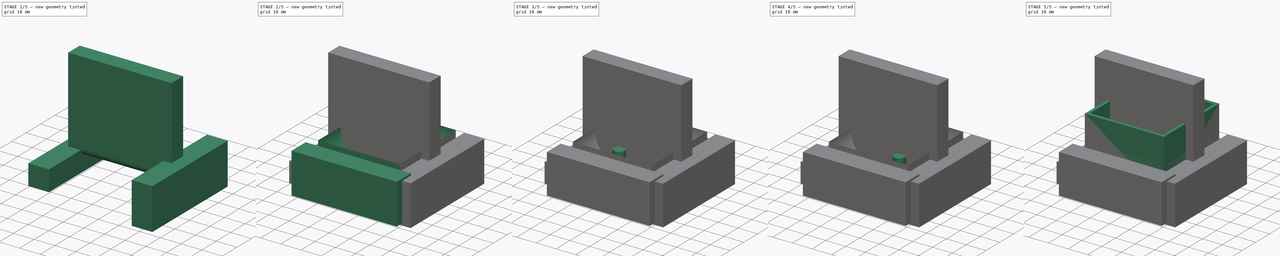
[diagram: build sequence overview — one tinted view per stage of 5, left to right]
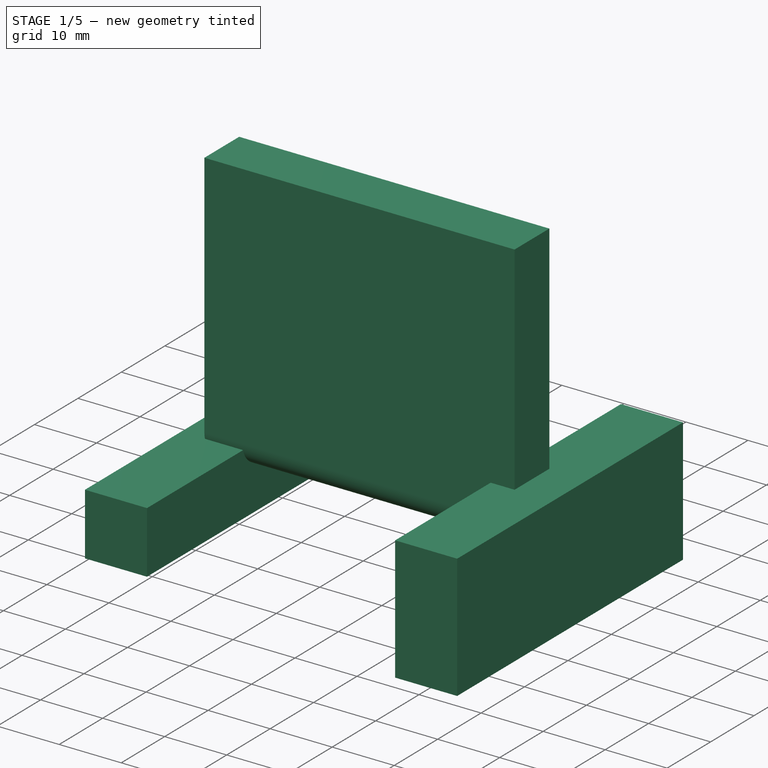
[diagram: stage 1 of 5 — iso view after this stage's code; geometry added in this stage tinted green]
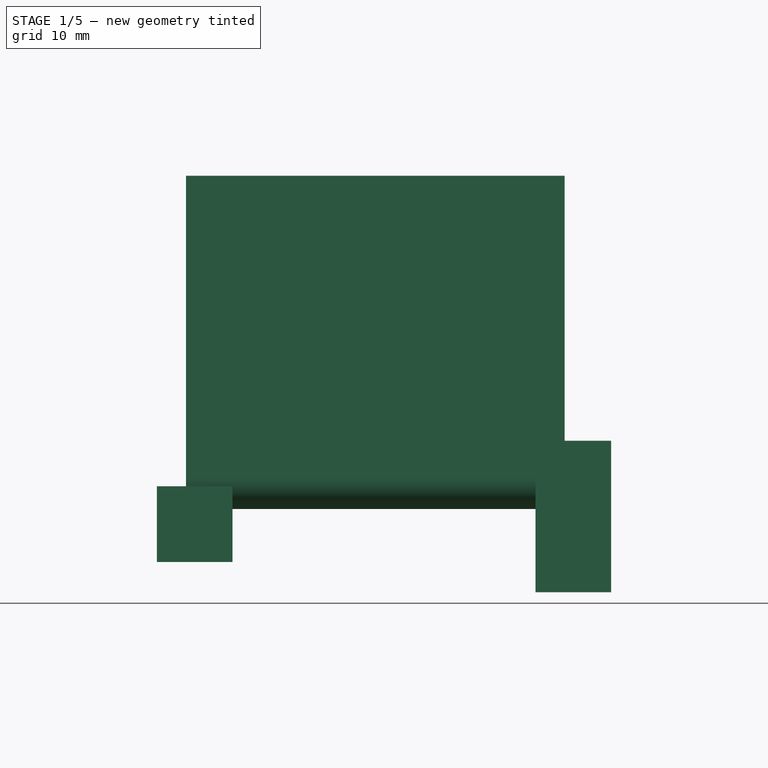
[diagram: stage 1 of 5 — front view after this stage's code; geometry added in this stage tinted green]
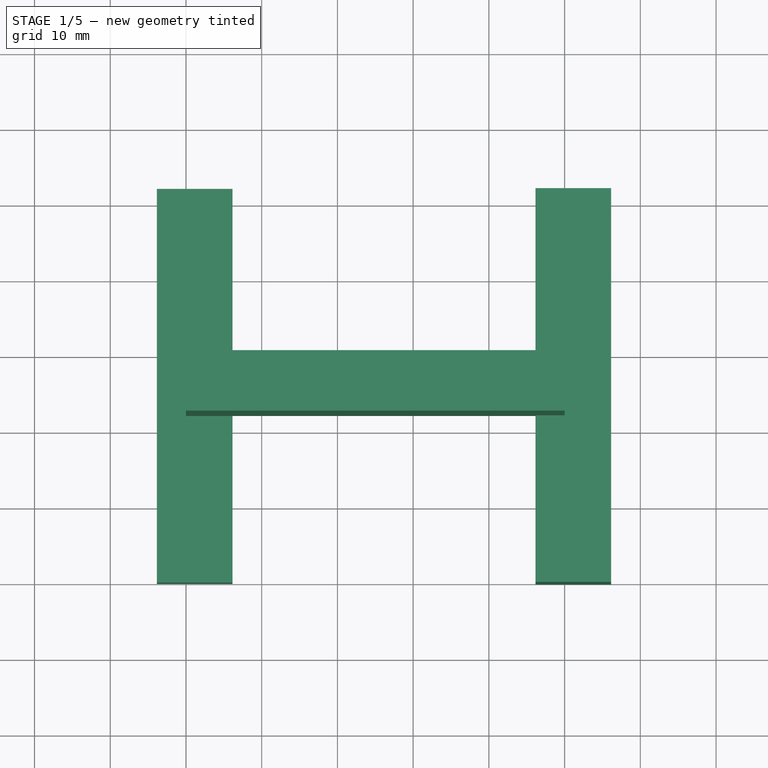
[diagram: stage 1 of 5 — top view after this stage's code; geometry added in this stage tinted green]
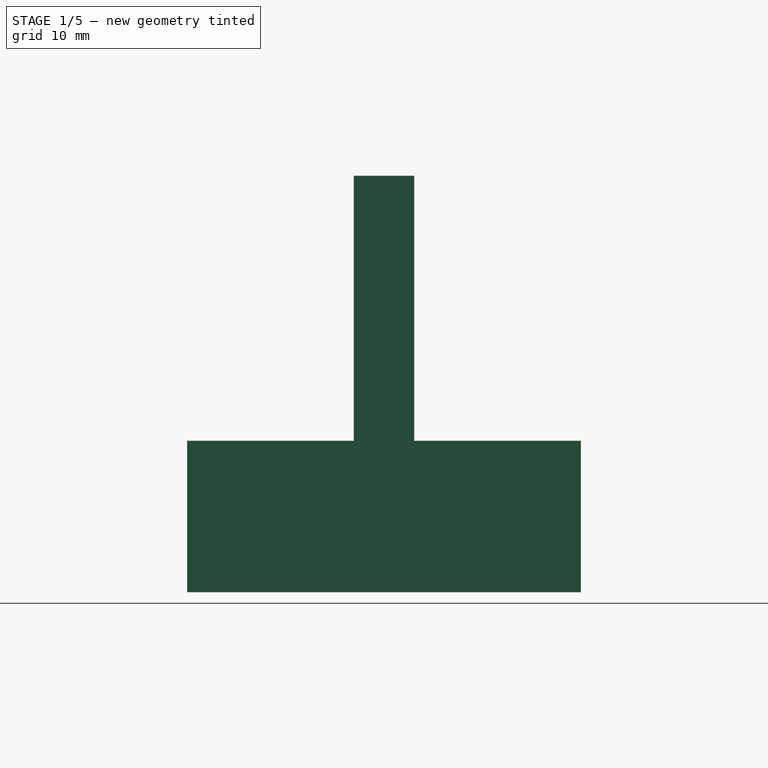
[diagram: stage 1 of 5 — right view after this stage's code; geometry added in this stage tinted green]
FCSTD DOCUMENT  (FreeCAD 0.19R0.19.2)
Label: motorMount031
License: All rights reserved
LicenseURL: http://en.wikipedia.org/wiki/All_rights_reserved
objects: Part::MultiFuse×6, Sketcher::SketchObject×5, Part::Cylinder×5, Part::Box×5, Part::Extrusion×4, Part::Cone×4, Part::Fuse×2, Part::Fillet×1, Part::Cut×1
note: 33 computed .brp shape members not serialized (recipe doc carries the construction recipe); baked Part::Feature solids carry a one-line shape summary decoded from their .brp

FEATURE [Part::Cylinder] Cylinder004
  Angle = 360
  AttacherType = Attacher::AttachEngine3D
  Height = 50
  Placement = pos=(0,0,0) rot=(0,1,0;1.5708rad)
  Radius = 4
FEATURE [Part::Box] Box002  label="Cube001"
  AttacherType = Attacher::AttachEngine3D
  Height = 40
  Length = 50
  Placement = pos=(0,-4,0) rot=(0,0,1;0rad)
  Width = 8
FEATURE [Part::MultiFuse] Fusion014  label="removeFromMain"
  Placement = pos=(-20,6,10) rot=(0,0,1;0rad)
  Shapes = -> [Cylinder004,Box002]
FEATURE [Part::Box] Box003  label="Cube002"
  AttacherType = Attacher::AttachEngine3D
  Height = 10
  Length = 52
  Placement = pos=(-20,26.15,0) rot=(0,0,1;0rad)
  Width = 10
FEATURE [Part::Box] Box004
  AttacherType = Attacher::AttachEngine3D
  Height = 20
  Length = 52
  Placement = pos=(-20,-23.85,-4) rot=(0,0,1;0rad)
  Width = 10
FEATURE [Part::MultiFuse] Fusion015  label="removeFrommain001"
  Placement = pos=(12.3,0,-1) rot=(0,0,1;1.5708rad)
  Shapes = -> [Box003,Box004]
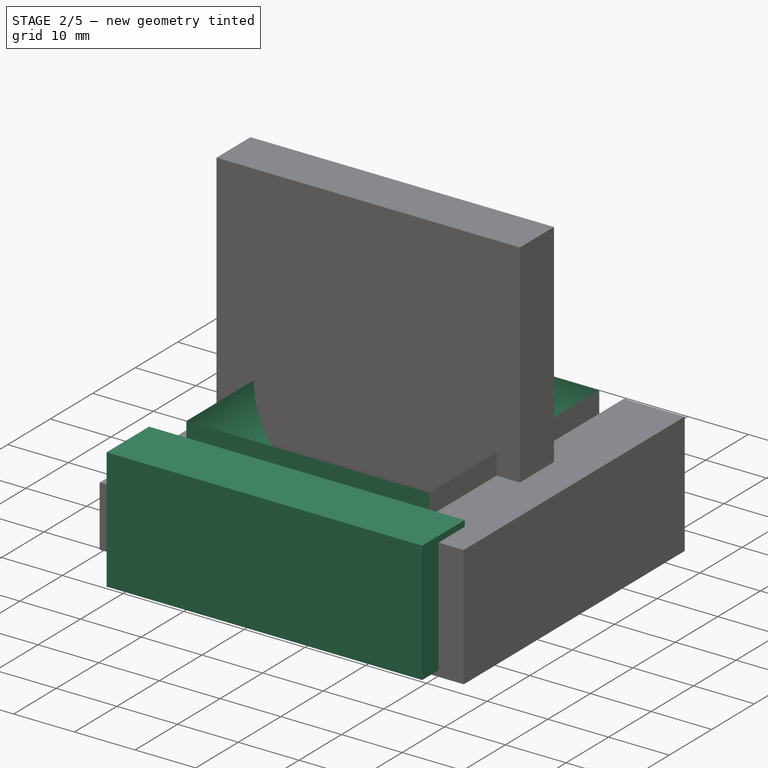
[diagram: stage 2 of 5 — iso view after this stage's code; geometry added in this stage tinted green]
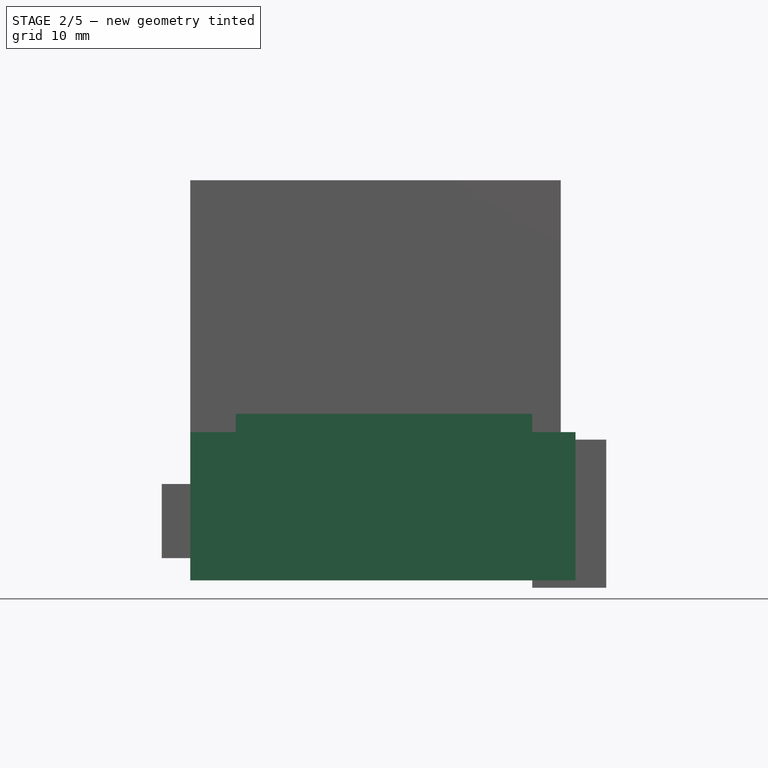
[diagram: stage 2 of 5 — front view after this stage's code; geometry added in this stage tinted green]
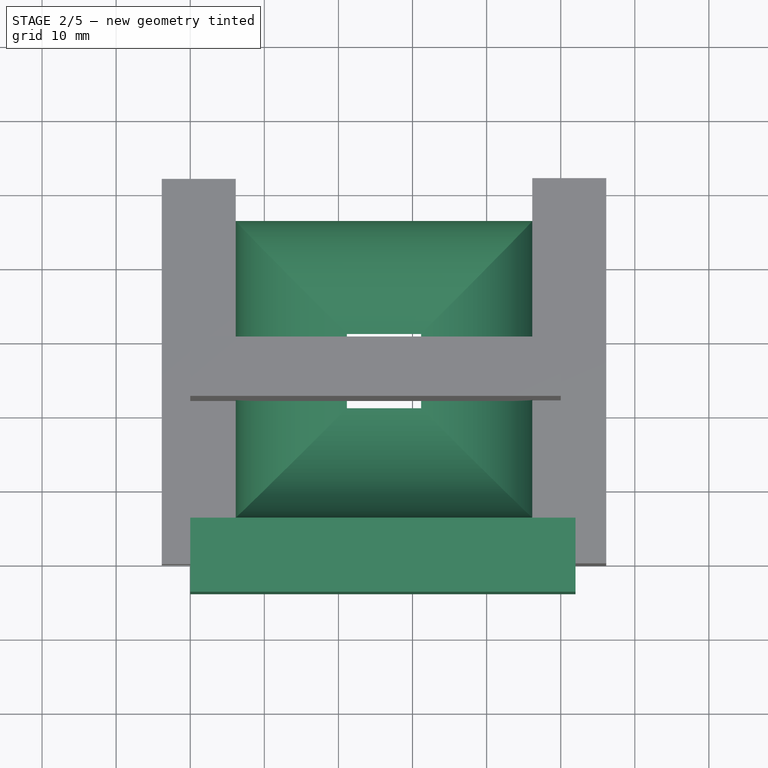
[diagram: stage 2 of 5 — top view after this stage's code; geometry added in this stage tinted green]
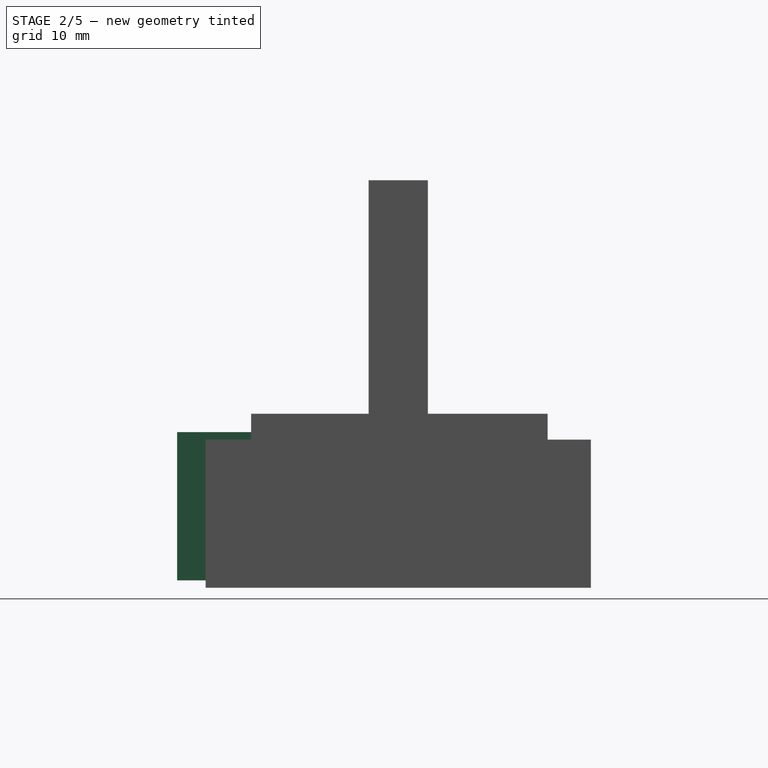
[diagram: stage 2 of 5 — right view after this stage's code; geometry added in this stage tinted green]
FEATURE [Sketcher::SketchObject] Sketch001
  FullyConstrained = true
  sketch-geometry (8):
    g0: LineSegment StartX=1.15 StartY=11.15 StartZ=0 EndX=11.15 EndY=11.15 EndZ=0
    g1: LineSegment StartX=11.15 StartY=1.15 StartZ=0 EndX=11.15 EndY=11.15 EndZ=0
    g2: LineSegment StartX=11.15 StartY=1.15 StartZ=0 EndX=1.15 EndY=1.15 EndZ=0
    g3: LineSegment StartX=1.15 StartY=11.15 StartZ=0 EndX=1.15 EndY=1.15 EndZ=0
    g4: LineSegment StartX=-13.85 StartY=-13.85 StartZ=0 EndX=-13.85 EndY=26.15 EndZ=0
    g5: LineSegment StartX=26.15 StartY=26.15 StartZ=0 EndX=-13.85 EndY=26.15 EndZ=0
    g6: LineSegment StartX=26.15 StartY=26.15 StartZ=0 EndX=26.15 EndY=-13.85 EndZ=0
    g7: LineSegment StartX=-13.85 StartY=-13.85 StartZ=0 EndX=26.15 EndY=-13.85 EndZ=0
  constraints (20):
    c: Horizontal(g0)
    c: Vertical(g1)
    c: Coincident(g0,g1)
    c: Horizontal(g2)
    c: Vertical(g3)
    c: Coincident(g3,g2)
    c: Block(g0)
    c: Block(g2)
    c: Block(g1)
    c: Block(g3)
    c: Vertical(g4)
    c: Horizontal(g5)
    c: Coincident(g5,g4)
    c: Block(g5)
    c: Block(g4)
    c: Coincident(g6,g5)
    c: Vertical(g6)
    c: Coincident(g7,g4)
    c: Horizontal(g7)
    c: Coincident(g7,g6)
FEATURE [Part::Extrusion] Extrude001
  Base = -> Sketch001
  Dir = (0,0,1)
  DirMode = 2
  FaceMakerClass = Part::FaceMakerBullseye
  LengthFwd = 30
  LengthRev = 0
  Placement = pos=(0,0,13.4) rot=(0,0,1;0rad)
  Solid = true
  Symmetric = false
FEATURE [Part::Box] Box001
  AttacherType = Attacher::AttachEngine3D
  Height = 20
  Length = 52
  Placement = pos=(-20,-23.85,-4) rot=(0,0,1;0rad)
  Width = 10
FEATURE [Sketcher::SketchObject] Sketch004
  FullyConstrained = true
  sketch-geometry (8):
    g0: LineSegment StartX=1.15 StartY=11.15 StartZ=0 EndX=11.15 EndY=11.15 EndZ=0
    g1: LineSegment StartX=11.15 StartY=1.15 StartZ=0 EndX=11.15 EndY=11.15 EndZ=0
    g2: LineSegment StartX=11.15 StartY=1.15 StartZ=0 EndX=1.15 EndY=1.15 EndZ=0
    g3: LineSegment StartX=1.15 StartY=11.15 StartZ=0 EndX=1.15 EndY=1.15 EndZ=0
    g4: LineSegment StartX=-13.85 StartY=-13.85 StartZ=0 EndX=-13.85 EndY=26.15 EndZ=0
    g5: LineSegment StartX=26.15 StartY=26.15 StartZ=0 EndX=-13.85 EndY=26.15 EndZ=0
    g6: LineSegment StartX=26.15 StartY=26.15 StartZ=0 EndX=26.15 EndY=-13.85 EndZ=0
    g7: LineSegment StartX=-13.85 StartY=-13.85 StartZ=0 EndX=26.15 EndY=-13.85 EndZ=0
  constraints (20):
    c: Horizontal(g0)
    c: Vertical(g1)
    c: Coincident(g0,g1)
    c: Horizontal(g2)
    c: Vertical(g3)
    c: Coincident(g3,g2)
    c: Block(g0)
    c: Block(g2)
    c: Block(g1)
    c: Block(g3)
    c: Vertical(g4)
    c: Horizontal(g5)
    c: Coincident(g5,g4)
    c: Block(g5)
    c: Block(g4)
    c: Coincident(g6,g5)
    c: Vertical(g6)
    c: Coincident(g7,g4)
    c: Horizontal(g7)
    c: Coincident(g7,g6)
FEATURE [Part::Extrusion] Extrude004
  Base = -> Sketch004
  Dir = (0,0,1)
  DirMode = 2
  FaceMakerClass = Part::FaceMakerBullseye
  LengthFwd = 30
  LengthRev = 0
  Placement = pos=(0,0,13.4) rot=(0,0,1;0rad)
  Solid = true
  Symmetric = false
FEATURE [Part::Fillet] Fillet
  Base = -> Extrude004
  Edges = 4 edges r=14.99: [Edge3,Edge6,Edge9,Edge11]
FEATURE [Part::Cut] Cut
  Base = -> Extrude001
  Placement = pos=(0,0,-9.9) rot=(0,0,1;0rad)
  Tool = -> Fillet
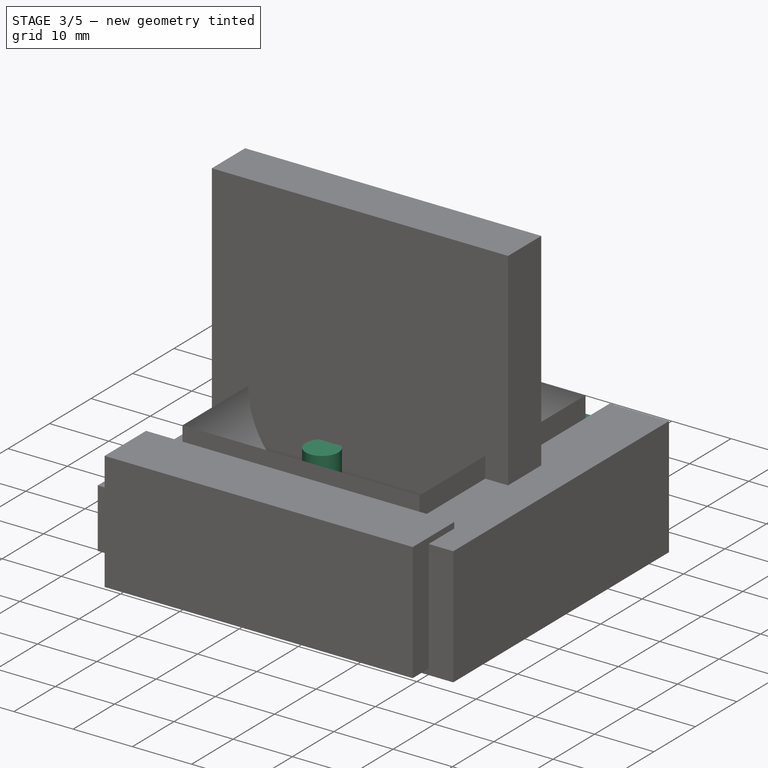
[diagram: stage 3 of 5 — iso view after this stage's code; geometry added in this stage tinted green]
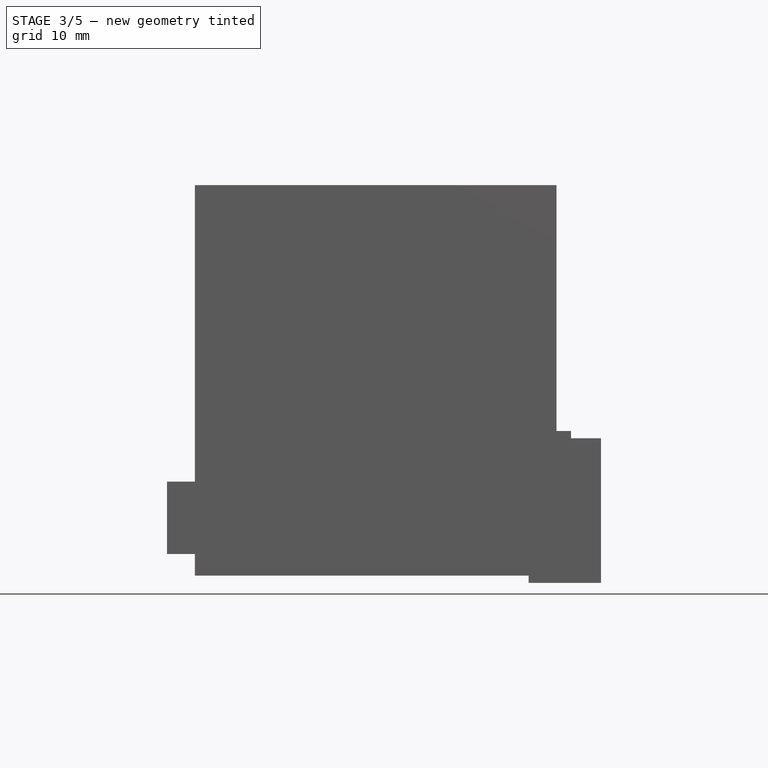
[diagram: stage 3 of 5 — front view after this stage's code; geometry added in this stage tinted green]
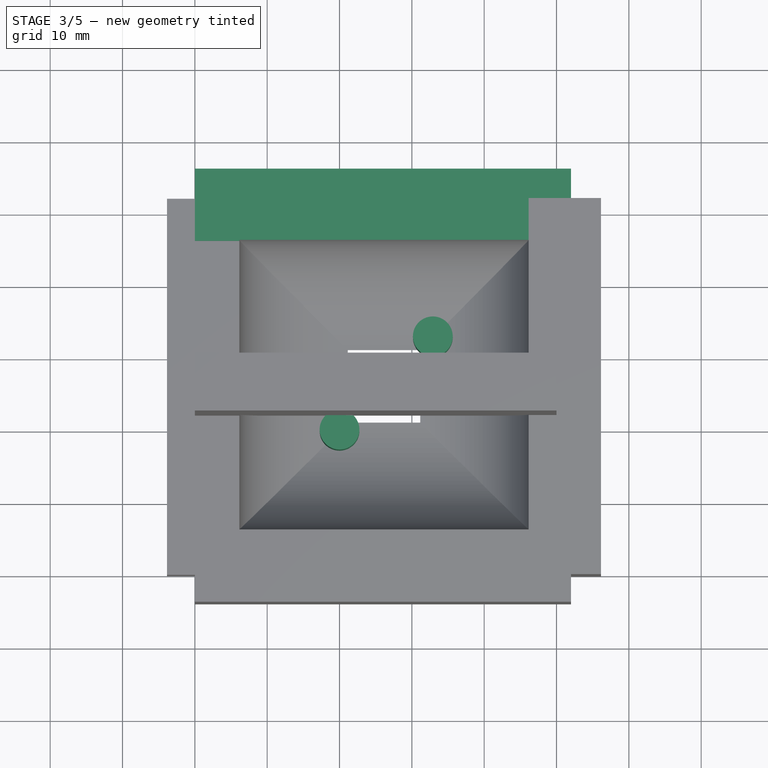
[diagram: stage 3 of 5 — top view after this stage's code; geometry added in this stage tinted green]
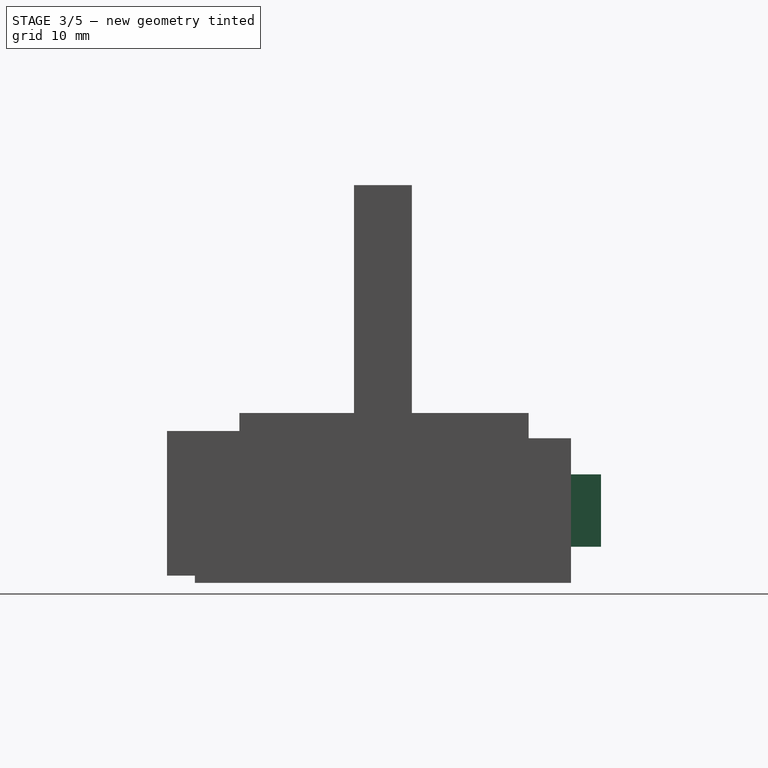
[diagram: stage 3 of 5 — right view after this stage's code; geometry added in this stage tinted green]
FEATURE [Part::Cone] Cone002
  Angle = 360
  AttacherType = Attacher::AttachEngine3D
  Height = 2
  Placement = pos=(0,0,1.5) rot=(0,0,1;0rad)
  Radius1 = 1.3
  Radius2 = 2.75
FEATURE [Part::Cylinder] Cylinder002
  Angle = 360
  AttacherType = Attacher::AttachEngine3D
  Height = 10
  Placement = pos=(0,0,3.5) rot=(0,0,1;0rad)
  Radius = 2.75
FEATURE [Part::Cylinder] Cylinder003
  Angle = 360
  AttacherType = Attacher::AttachEngine3D
  Height = 10
  Placement = pos=(0,0,3.5) rot=(0,0,1;0rad)
  Radius = 2.75
FEATURE [Part::Box] Box  label="Cube"
  AttacherType = Attacher::AttachEngine3D
  Height = 10
  Length = 52
  Placement = pos=(-20,26.15,0) rot=(0,0,1;0rad)
  Width = 10
FEATURE [Part::MultiFuse] Fusion009  label="removeFromMainToCreateScrewChamfer002"
  Placement = pos=(12.9,12.9,0) rot=(0,0,1;0rad)
  Shapes = -> [Cylinder002,Cone002]
FEATURE [Part::MultiFuse] Fusion013  label="removeFrommain"
  Shapes = -> [Box,Box001]
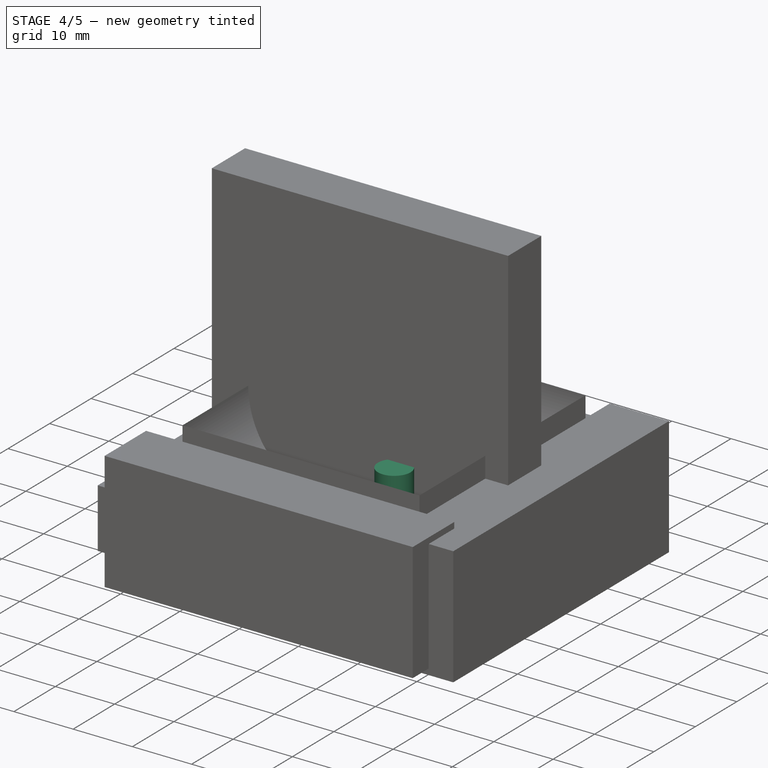
[diagram: stage 4 of 5 — iso view after this stage's code; geometry added in this stage tinted green]
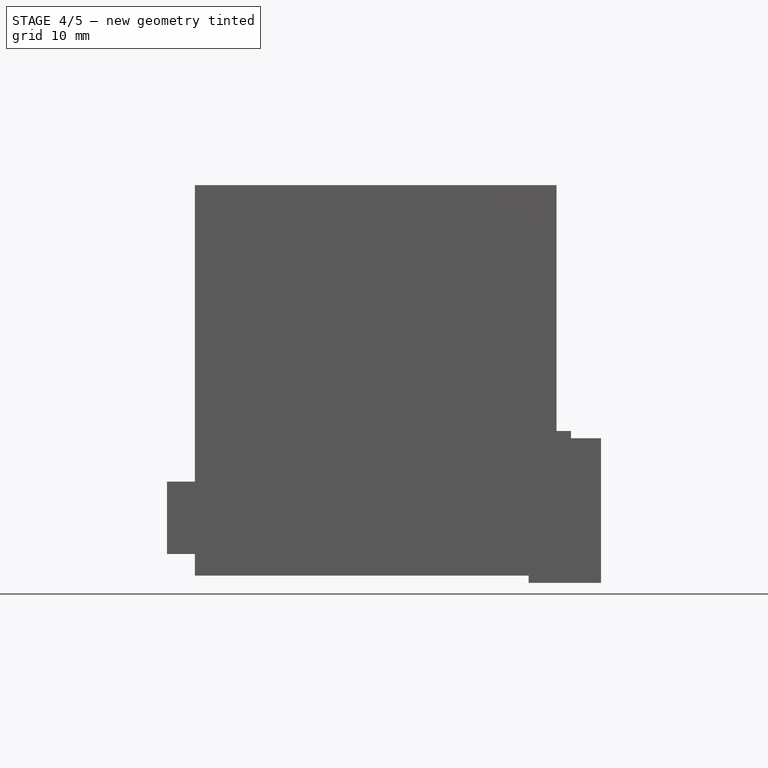
[diagram: stage 4 of 5 — front view after this stage's code; geometry added in this stage tinted green]
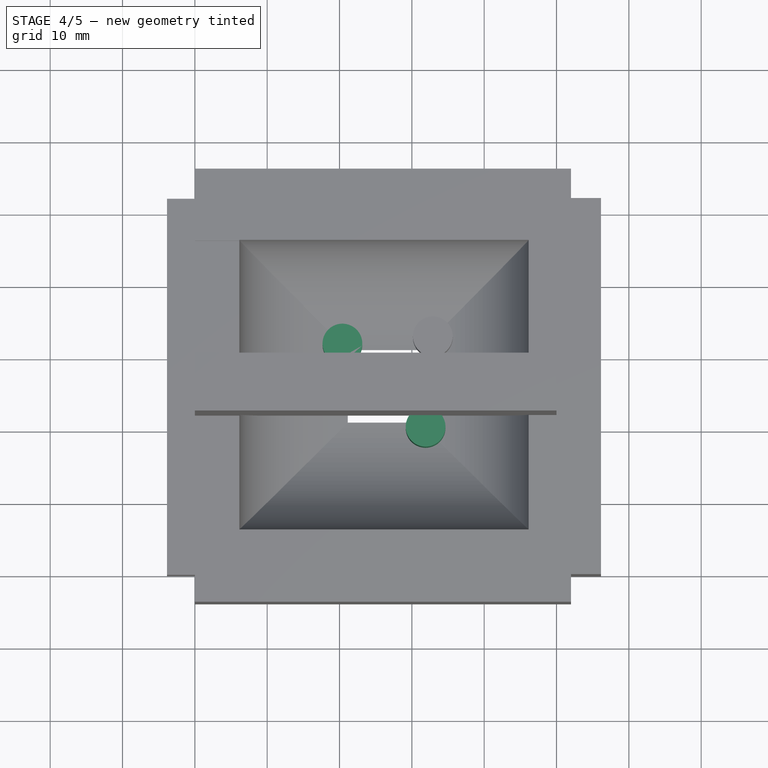
[diagram: stage 4 of 5 — top view after this stage's code; geometry added in this stage tinted green]
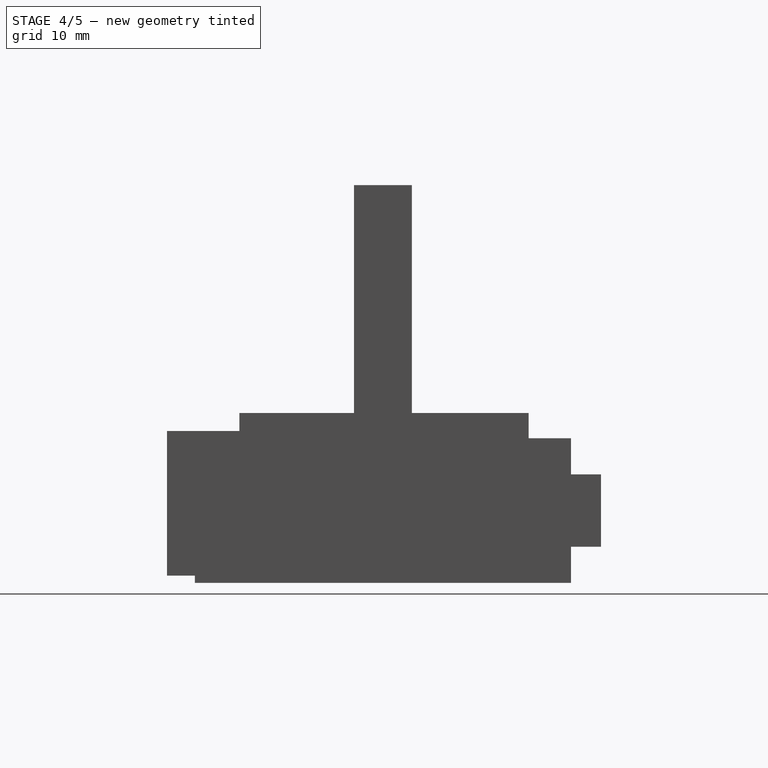
[diagram: stage 4 of 5 — right view after this stage's code; geometry added in this stage tinted green]
FEATURE [Part::Cone] Cone001
  Angle = 360
  AttacherType = Attacher::AttachEngine3D
  Height = 2
  Placement = pos=(0,0,1.5) rot=(0,0,1;0rad)
  Radius1 = 1.3
  Radius2 = 2.75
FEATURE [Part::Cylinder] Cylinder001
  Angle = 360
  AttacherType = Attacher::AttachEngine3D
  Height = 10
  Placement = pos=(0,0,3.5) rot=(0,0,1;0rad)
  Radius = 2.75
FEATURE [Part::Cone] Cone003
  Angle = 360
  AttacherType = Attacher::AttachEngine3D
  Height = 2
  Placement = pos=(0,0,1.5) rot=(0,0,1;0rad)
  Radius1 = 1.3
  Radius2 = 2.75
FEATURE [Part::Fuse] Fusion007  label="removeFromMainToCreateScrewChamfer001"
  Base = -> Cone001
  Placement = pos=(11.9,0.4,0) rot=(0,0,1;0rad)
  Tool = -> Cylinder001
FEATURE [Part::MultiFuse] Fusion008  label="removeFromMainToCreateScrewChamfer003"
  Placement = pos=(0.4,11.9,0) rot=(0,0,1;0rad)
  Shapes = -> [Cylinder003,Cone003]
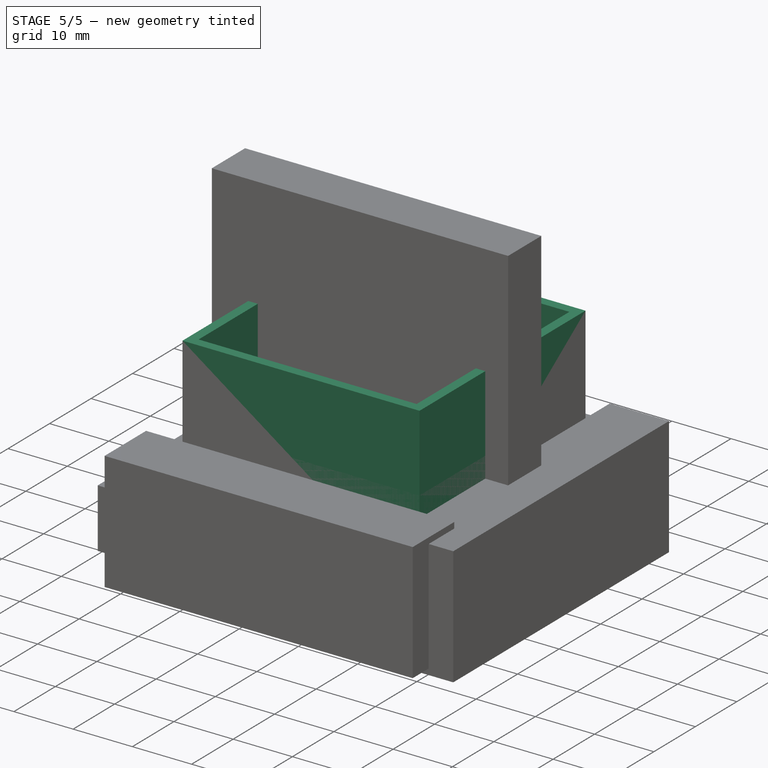
[diagram: stage 5 of 5 — iso view after this stage's code; geometry added in this stage tinted green]
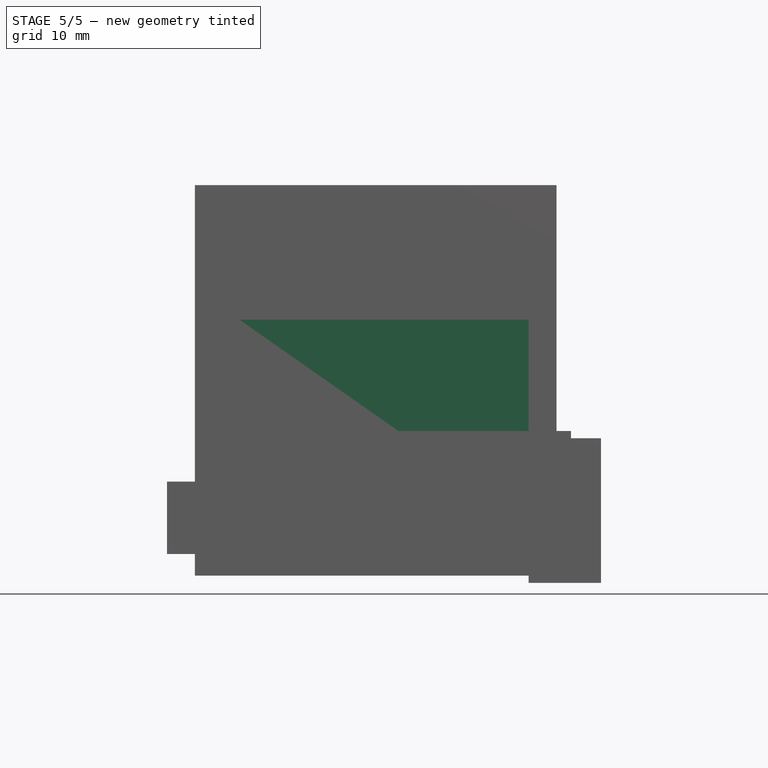
[diagram: stage 5 of 5 — front view after this stage's code; geometry added in this stage tinted green]
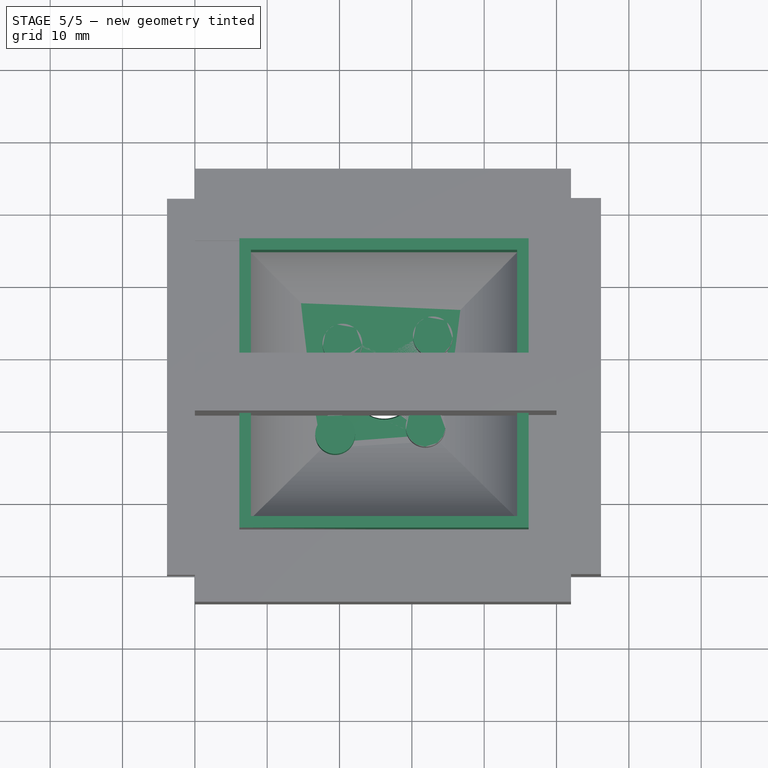
[diagram: stage 5 of 5 — top view after this stage's code; geometry added in this stage tinted green]
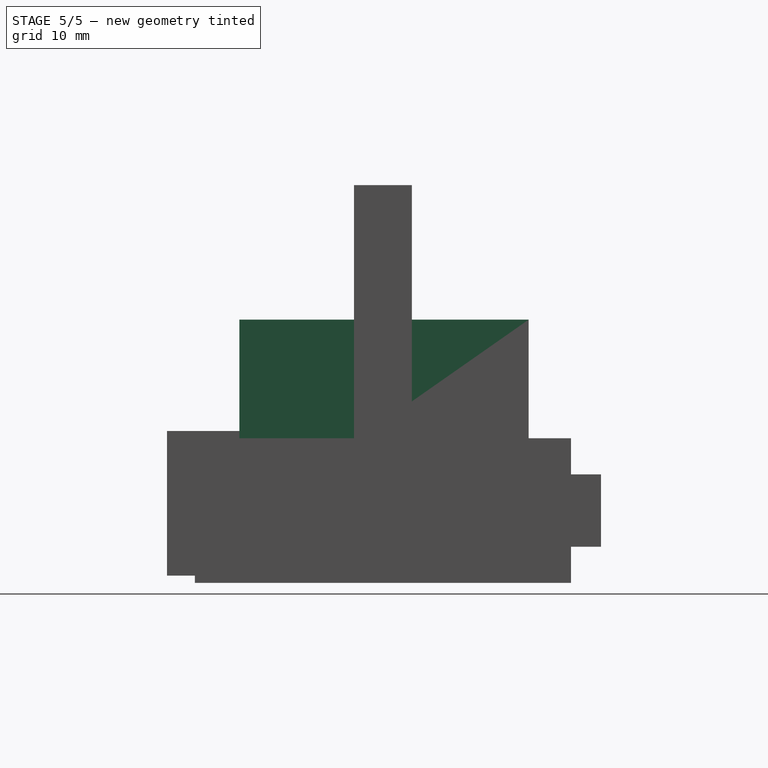
[diagram: stage 5 of 5 — right view after this stage's code; geometry added in this stage tinted green]
FEATURE [Sketcher::SketchObject] Sketch
  FullyConstrained = true
  sketch-geometry (9):
    g0: Circle CenterX=6.15 CenterY=6.15 CenterZ=0 NormalX=0 NormalY=0 NormalZ=1 AngleXU=0 Radius=4.4
    g1: Circle CenterX=-0.6 CenterY=-0.6 CenterZ=0 NormalX=0 NormalY=0 NormalZ=1 AngleXU=0 Radius=1.3
    g2: Circle CenterX=12.9 CenterY=12.9 CenterZ=0 NormalX=0 NormalY=0 NormalZ=1 AngleXU=0 Radius=1.3
    g3: Circle CenterX=0.4 CenterY=11.9 CenterZ=0 NormalX=0 NormalY=0 NormalZ=1 AngleXU=0 Radius=1.3
    g4: Circle CenterX=11.9 CenterY=0.4 CenterZ=0 NormalX=0 NormalY=0 NormalZ=1 AngleXU=0 Radius=1.3
    g5: LineSegment StartX=31.15 StartY=31.15 StartZ=0 EndX=-18.85 EndY=31.15 EndZ=0
    g6: LineSegment StartX=-18.85 StartY=-18.85 StartZ=0 EndX=-18.85 EndY=31.15 EndZ=0
    g7: LineSegment StartX=-18.85 StartY=-18.85 StartZ=0 EndX=31.15 EndY=-18.85 EndZ=0
    g8: LineSegment StartX=31.15 StartY=31.15 StartZ=0 EndX=31.15 EndY=-18.85 EndZ=0
  constraints (16):
    c: Block(g0)
    c: Block(g1)
    c: Block(g2)
    c: Block(g3)
    c: Block(g4)
    c: Horizontal(g5)
    c: Vertical(g6)
    c: Coincident(g6,g5)
    c: Block(g6)
    c: Coincident(g7,g6)
    c: Horizontal(g7)
    c: Vertical(g8)
    c: Coincident(g7,g8)
    c: Block(g8)
    c: Block(g7)
    c: Block(g5)
FEATURE [Part::Extrusion] Extrude
  Base = -> Sketch
  Dir = (0,0,1)
  DirMode = 2
  FaceMakerClass = Part::FaceMakerBullseye
  LengthFwd = 4
  LengthRev = 0
  Placement = pos=(0,0,0) rot=(0.949629,0.313377,0;0.05236rad)
  Solid = true
  Symmetric = false
FEATURE [Part::Cone] Cone
  Angle = 360
  AttacherType = Attacher::AttachEngine3D
  Height = 2
  Placement = pos=(0,0,1.5) rot=(0,0,1;0rad)
  Radius1 = 1.3
  Radius2 = 2.75
FEATURE [Part::Cylinder] Cylinder
  Angle = 360
  AttacherType = Attacher::AttachEngine3D
  Height = 10
  Placement = pos=(0,0,3.5) rot=(0,0,1;0rad)
  Radius = 2.75
FEATURE [Part::Fuse] Fusion  label="removeFrommainToCreateScrewChamfer004"
  Base = -> Cone
  Placement = pos=(-0.6,-0.6,0) rot=(0,0,1;0rad)
  Tool = -> Cylinder
FEATURE [Sketcher::SketchObject] Sketch002
  FullyConstrained = true
  sketch-geometry (8):
    g0: LineSegment StartX=-8.85 StartY=21.15 StartZ=0 EndX=-8.85 EndY=-8.85 EndZ=0
    g1: LineSegment StartX=-8.85 StartY=-8.85 StartZ=0 EndX=21.15 EndY=-8.85 EndZ=0
    g2: LineSegment StartX=15.15 StartY=-2.85 StartZ=0 EndX=15.15 EndY=15.15 EndZ=0
    g3: LineSegment StartX=-2.85 StartY=15.15 StartZ=0 EndX=15.15 EndY=15.15 EndZ=0
    g4: LineSegment StartX=-2.85 StartY=15.15 StartZ=0 EndX=-2.85 EndY=-2.85 EndZ=0
    g5: LineSegment StartX=15.15 StartY=-2.85 StartZ=0 EndX=-2.85 EndY=-2.85 EndZ=0
    g6: LineSegment StartX=21.15 StartY=-8.85 StartZ=0 EndX=21.15 EndY=21.15 EndZ=0
    g7: LineSegment StartX=-8.85 StartY=21.15 StartZ=0 EndX=21.15 EndY=21.15 EndZ=0
  constraints (20):
    c: Vertical(g0)
    c: Distance(g0) = 30
    c: Block(g0)
    c: Coincident(g1,g0)
    c: Vertical(g2)
    c: Horizontal(g3)
    c: Coincident(g3,g2)
    c: Block(g2)
    c: Block(g3)
    c: Coincident(g4,g3)
    c: Vertical(g4)
    c: Coincident(g5,g2)
    c: Horizontal(g5)
    c: Coincident(g4,g5)
    c: Block(g1)
    c: Coincident(g6,g1)
    c: Vertical(g6)
    c: Coincident(g7,g0)
    c: Horizontal(g7)
    c: Coincident(g7,g6)
FEATURE [Sketcher::SketchObject] Sketch003
  FullyConstrained = true
  sketch-geometry (8):
    g0: LineSegment StartX=26.15 StartY=26.15 StartZ=0 EndX=-13.85 EndY=26.15 EndZ=0
    g1: LineSegment StartX=-13.85 StartY=-13.85 StartZ=0 EndX=26.15 EndY=-13.85 EndZ=0
    g2: LineSegment StartX=24.55 StartY=24.55 StartZ=0 EndX=24.55 EndY=-12.25 EndZ=0
    g3: LineSegment StartX=-12.25 StartY=-12.25 StartZ=0 EndX=24.55 EndY=-12.25 EndZ=0
    g4: LineSegment StartX=24.55 StartY=24.55 StartZ=0 EndX=-12.25 EndY=24.55 EndZ=0
    g5: LineSegment StartX=-12.25 StartY=-12.25 StartZ=0 EndX=-12.25 EndY=24.55 EndZ=0
    g6: LineSegment StartX=26.15 StartY=26.15 StartZ=0 EndX=26.15 EndY=-13.85 EndZ=0
    g7: LineSegment StartX=-13.85 StartY=26.15 StartZ=0 EndX=-13.85 EndY=-13.85 EndZ=0
  constraints (20):
    c: Horizontal(g0)
    c: Block(g0)
    c: Horizontal(g1)
    c: Block(g1)
    c: Vertical(g2)
    c: Horizontal(g3)
    c: Coincident(g3,g2)
    c: Block(g3)
    c: Block(g2)
    c: Coincident(g4,g2)
    c: Horizontal(g4)
    c: Coincident(g5,g3)
    c: Vertical(g5)
    c: Coincident(g4,g5)
    c: Coincident(g6,g0)
    c: Coincident(g6,g1)
    c: Vertical(g6)
    c: Coincident(g7,g0)
    c: Coincident(g7,g1)
    c: Vertical(g7)
FEATURE [Part::Extrusion] Extrude003
  Base = -> Sketch003
  Dir = (0,0,1)
  DirMode = 2
  FaceMakerClass = Part::FaceMakerBullseye
  LengthFwd = 28
  LengthRev = 0
  Placement = pos=(0,0,3.4) rot=(0,0,1;0rad)
  Solid = true
  Symmetric = false
FEATURE [Part::MultiFuse] Fusion012  label="removeFromMain001"
  Placement = pos=(0,0,-0.4) rot=(0,0,1;0rad)
  Shapes = -> [Fusion009,Fusion008,Fusion007,Fusion]
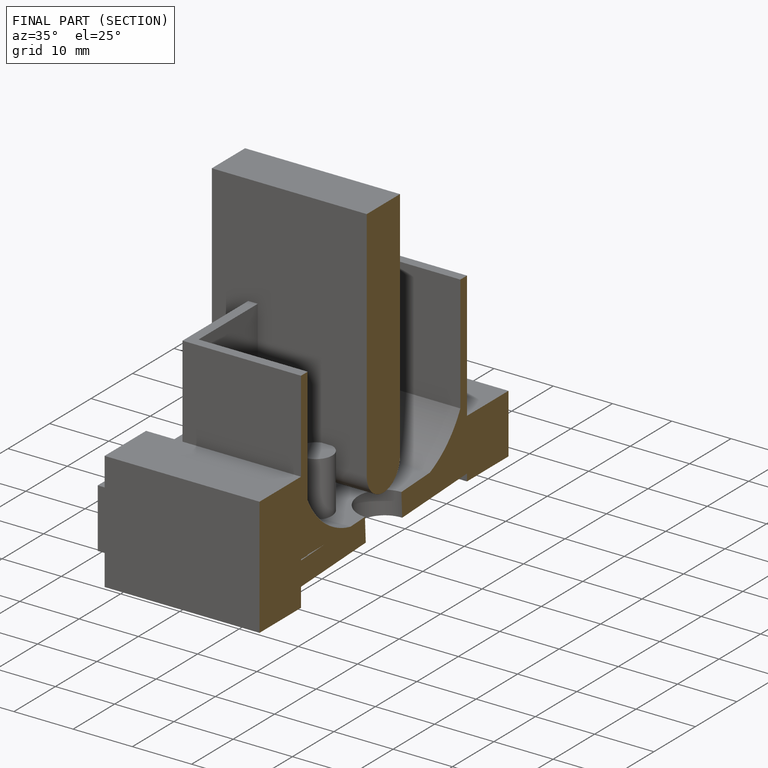
[diagram: finished part — half-section view (interior)]
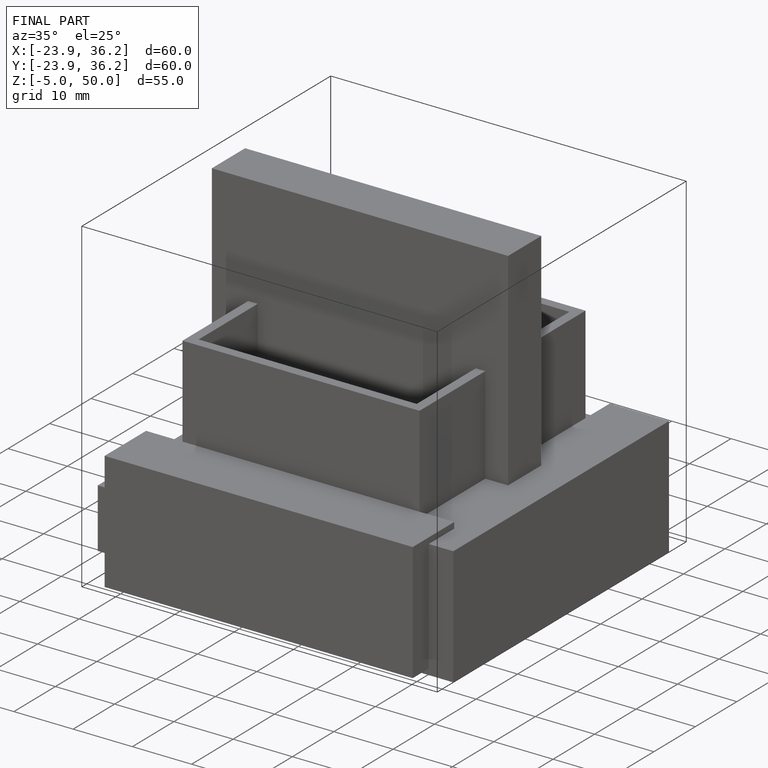
[diagram: finished part — iso view with bounding-box wireframe]
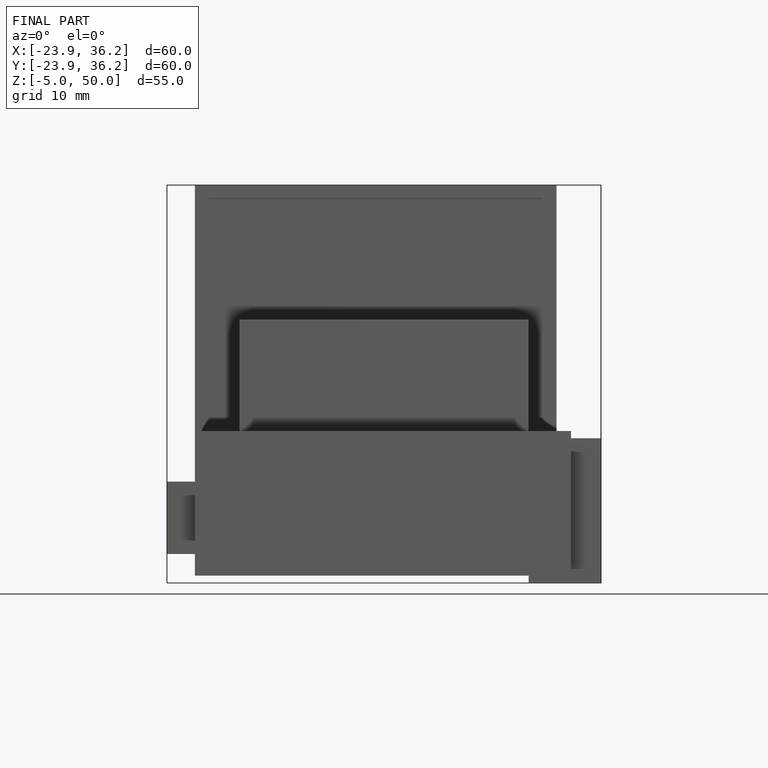
[diagram: finished part — front view with bounding-box wireframe]
